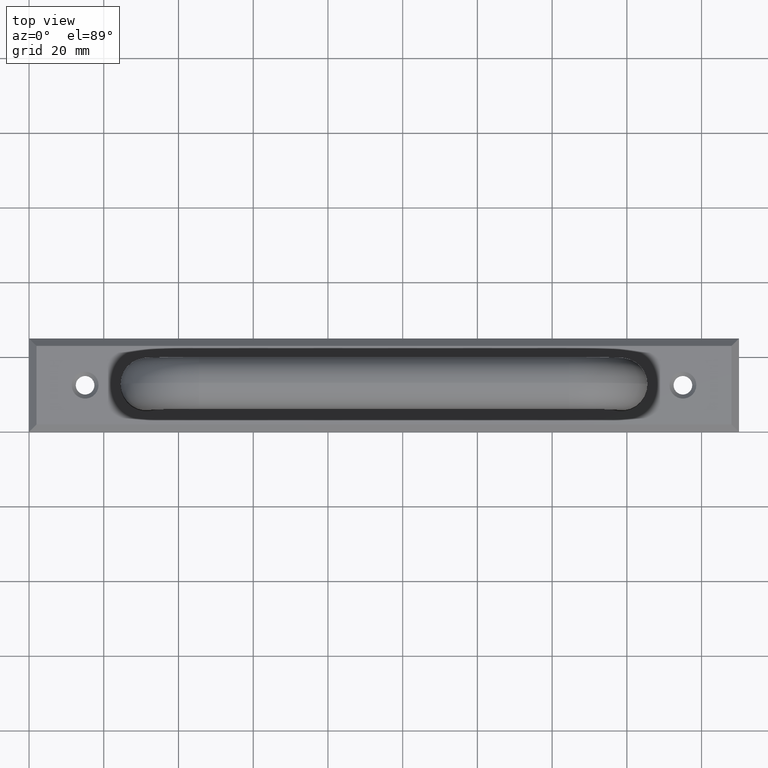
[diagram: clean part render]
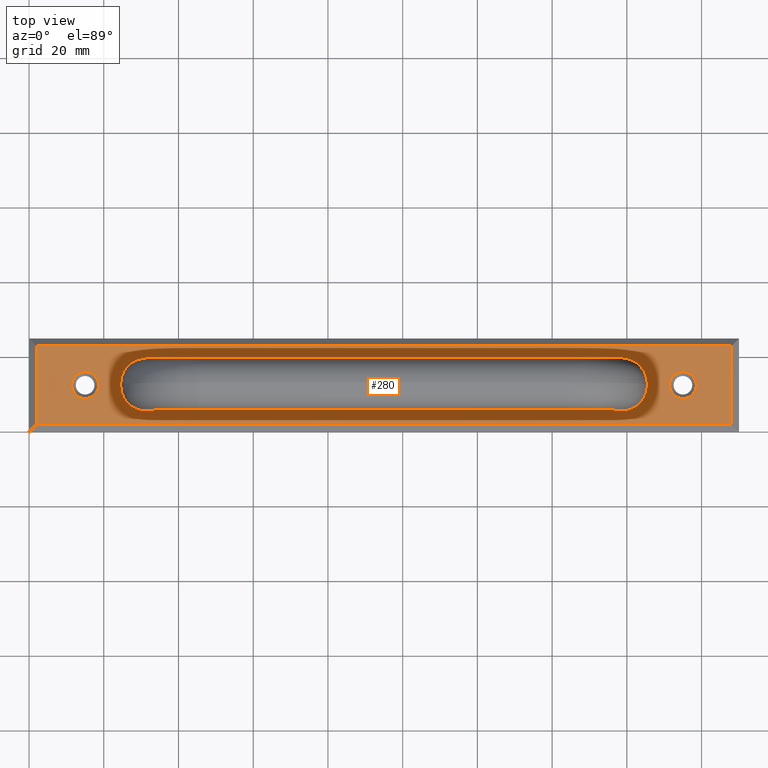
[diagram: same view with one face highlighted and labeled with its STEP entity id]
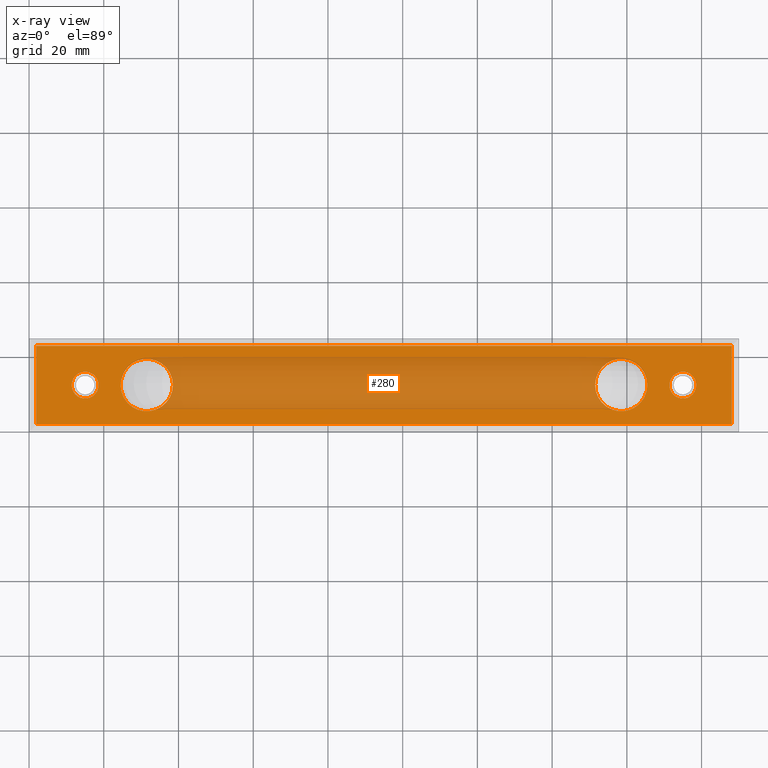
[diagram: x-ray of the same camera — body ghosted, the highlighted face saturated]
A machine part, top view. The second image highlights one B-rep face of the part: STEP entity #280.
The next image is the same camera in x-ray: the body ghosted, the highlighted face saturated — about 46% of this face is hidden behind the body in this view.
In plain terms, the highlighted planar face has unit normal (0, 0, 1).
Its self-contained STEP definition (entity closure, byte-faithful):
#18=LINE('',#433,#38);
#21=LINE('',#439,#41);
#22=LINE('',#441,#42);
#23=LINE('',#442,#43);
#38=VECTOR('',#353,21.);
#41=VECTOR('',#358,186.);
#42=VECTOR('',#359,21.);
#43=VECTOR('',#360,186.);
#58=PLANE('',#307);
#74=FACE_BOUND('',#115,.T.);
#75=FACE_BOUND('',#116,.T.);
#76=FACE_BOUND('',#117,.T.);
#77=FACE_BOUND('',#118,.T.);
#90=FACE_OUTER_BOUND('',#114,.T.);
#114=EDGE_LOOP('',(#219,#220,#221,#222));
#115=EDGE_LOOP('',(#223));
#116=EDGE_LOOP('',(#224));
#117=EDGE_LOOP('',(#225));
#118=EDGE_LOOP('',(#226));
#138=CIRCLE('',#297,7.);
#140=CIRCLE('',#300,7.);
#143=CIRCLE('',#308,3.6);
#144=CIRCLE('',#309,3.6);
#150=VERTEX_POINT('',#414);
#152=VERTEX_POINT('',#419);
#156=VERTEX_POINT('',#430);
#157=VERTEX_POINT('',#432);
#159=VERTEX_POINT('',#438);
#160=VERTEX_POINT('',#440);
#161=VERTEX_POINT('',#443);
#162=VERTEX_POINT('',#445);
#174=EDGE_CURVE('',#150,#150,#138,.T.);
#176=EDGE_CURVE('',#152,#152,#140,.T.);
#180=EDGE_CURVE('',#156,#157,#18,.T.);
#183=EDGE_CURVE('',#159,#156,#21,.T.);
#184=EDGE_CURVE('',#160,#159,#22,.T.);
#185=EDGE_CURVE('',#157,#160,#23,.T.);
#186=EDGE_CURVE('',#161,#161,#143,.T.);
#187=EDGE_CURVE('',#162,#162,#144,.T.);
#219=ORIENTED_EDGE('',*,*,#180,.F.);
#220=ORIENTED_EDGE('',*,*,#183,.F.);
#221=ORIENTED_EDGE('',*,*,#184,.F.);
#222=ORIENTED_EDGE('',*,*,#185,.F.);
#223=ORIENTED_EDGE('',*,*,#174,.T.);
#224=ORIENTED_EDGE('',*,*,#176,.T.);
#225=ORIENTED_EDGE('',*,*,#186,.T.);
#226=ORIENTED_EDGE('',*,*,#187,.T.);
#280=ADVANCED_FACE('',(#90,#74,#75,#76,#77),#58,.T.);
#297=AXIS2_PLACEMENT_3D('',#415,#332,#333);
#300=AXIS2_PLACEMENT_3D('',#420,#338,#339);
#307=AXIS2_PLACEMENT_3D('',#437,#356,#357);
#308=AXIS2_PLACEMENT_3D('',#444,#361,#362);
#309=AXIS2_PLACEMENT_3D('',#446,#363,#364);
#332=DIRECTION('center_axis',(0.,0.,-1.));
#333=DIRECTION('ref_axis',(1.,0.,-9.34924652315918E-16));
#338=DIRECTION('center_axis',(0.,0.,-1.));
#339=DIRECTION('ref_axis',(-1.,0.,-9.34924652315921E-16));
#353=DIRECTION('',(0.,1.,0.));
#356=DIRECTION('center_axis',(0.,0.,1.));
#357=DIRECTION('ref_axis',(1.,0.,0.));
#358=DIRECTION('',(-1.,0.,0.));
#359=DIRECTION('',(0.,-1.,0.));
#360=DIRECTION('',(1.,0.,0.));
#361=DIRECTION('center_axis',(0.,0.,-1.));
#362=DIRECTION('ref_axis',(1.,0.,0.));
#363=DIRECTION('center_axis',(0.,0.,-1.));
#364=DIRECTION('ref_axis',(1.,0.,0.));
#414=CARTESIAN_POINT('',(24.5,12.5,3.00000000000007));
#415=CARTESIAN_POINT('Origin',(31.5,12.5,3.00000000000006));
#419=CARTESIAN_POINT('',(165.5,12.5,3.00000000000007));
#420=CARTESIAN_POINT('Origin',(158.5,12.5,3.00000000000006));
#430=CARTESIAN_POINT('',(2.,2.,3.));
#432=CARTESIAN_POINT('',(1.99999999999999,23.,3.));
#433=CARTESIAN_POINT('',(2.,18.75,3.));
#437=CARTESIAN_POINT('Origin',(95.,12.5,3.));
#438=CARTESIAN_POINT('',(188.,2.,3.));
#439=CARTESIAN_POINT('',(47.5,2.,3.));
#440=CARTESIAN_POINT('',(188.,23.,3.));
#441=CARTESIAN_POINT('',(188.,6.25,3.));
#442=CARTESIAN_POINT('',(142.5,23.,3.));
#443=CARTESIAN_POINT('',(178.6,12.5,3.));
#444=CARTESIAN_POINT('Origin',(175.,12.5,3.));
#445=CARTESIAN_POINT('',(18.6,12.5,3.));
#446=CARTESIAN_POINT('Origin',(15.,12.5,3.));